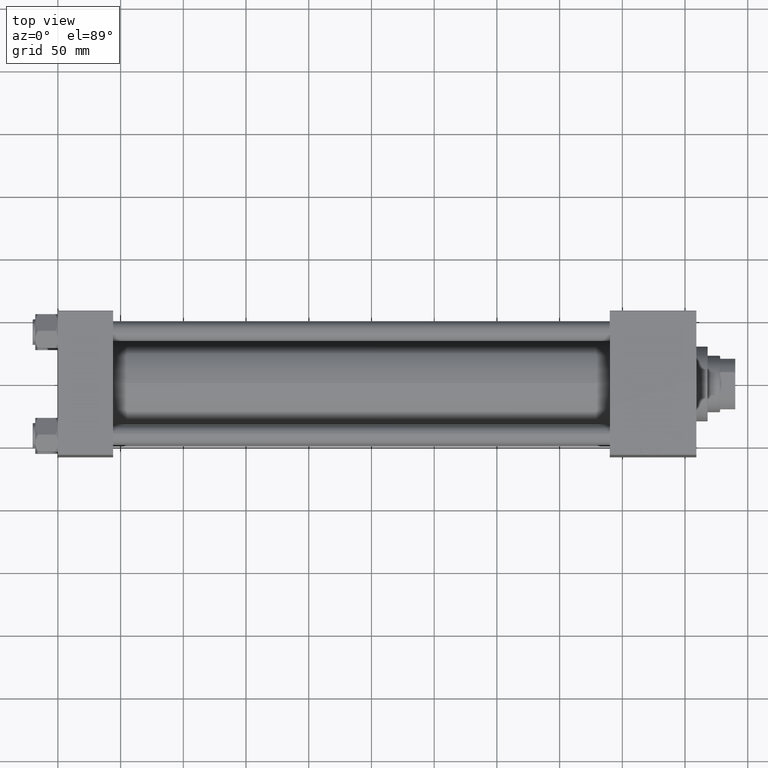
[diagram: clean part render]
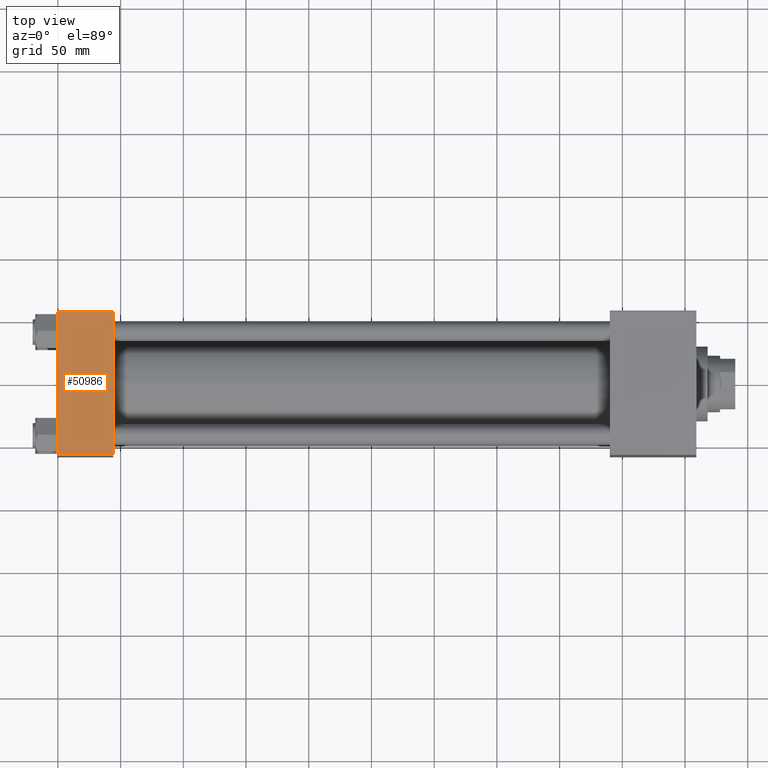
[diagram: same view with one face highlighted and labeled with its STEP entity id]
A machine part, top view. The second image highlights one B-rep face of the part: STEP entity #50986.
In plain terms, the highlighted planar face has unit normal (0, 0, -1).
Its self-contained STEP definition (entity closure, byte-faithful):
#527 = DIRECTION ( 'NONE',  ( 0.000000000000000000, 1.206764157201257045E-16, -1.000000000000000000 ) ) ;
#2572 = CARTESIAN_POINT ( 'NONE',  ( 44.00000000000000000, 57.49999999999999289, 57.50000000000000711 ) ) ;
#2900 = VECTOR ( 'NONE', #6947, 1000.000000000000000 ) ;
#4457 = DIRECTION ( 'NONE',  ( 0.000000000000000000, 1.000000000000000000, 1.206764157201257045E-16 ) ) ;
#5483 = VECTOR ( 'NONE', #32689, 1000.000000000000000 ) ;
#6762 = CARTESIAN_POINT ( 'NONE',  ( 44.00000000000000000, 57.00000000000000711, 57.50000000000000711 ) ) ;
#6947 = DIRECTION ( 'NONE',  ( 0.000000000000000000, -1.000000000000000000, -1.206764157201257045E-16 ) ) ;
#8408 = CARTESIAN_POINT ( 'NONE',  ( 44.00000000000000000, 57.49999999999999289, 57.50000000000000711 ) ) ;
#8502 = LINE ( 'NONE', #8770, #5483 ) ;
#8770 = CARTESIAN_POINT ( 'NONE',  ( 0.000000000000000000, 57.00000000000000711, 57.50000000000000711 ) ) ;
#9239 = LINE ( 'NONE', #2572, #50044 ) ;
#11508 = EDGE_CURVE ( 'NONE', #19704, #16180, #35085, .T. ) ;
#12362 = PLANE ( 'NONE',  #25384 ) ;
#12518 = ORIENTED_EDGE ( 'NONE', *, *, #13689, .T. ) ;
#12540 = CARTESIAN_POINT ( 'NONE',  ( 0.000000000000000000, 57.00000000000000711, 57.50000000000000711 ) ) ;
#13689 = EDGE_CURVE ( 'NONE', #44432, #19704, #8502, .T. ) ;
#15607 = EDGE_CURVE ( 'NONE', #44432, #42137, #9239, .T. ) ;
#16180 = VERTEX_POINT ( 'NONE', #20818 ) ;
#19704 = VERTEX_POINT ( 'NONE', #12540 ) ;
#20818 = CARTESIAN_POINT ( 'NONE',  ( 0.000000000000000000, -57.00000000000003553, 57.49999999999999289 ) ) ;
#23814 = CARTESIAN_POINT ( 'NONE',  ( 44.00000000000000000, -57.00000000000003553, 57.49999999999999289 ) ) ;
#25384 = AXIS2_PLACEMENT_3D ( 'NONE', #8408, #527, #4457 ) ;
#30711 = DIRECTION ( 'NONE',  ( 0.000000000000000000, -1.000000000000000000, -1.206764157201257045E-16 ) ) ;
#31424 = CARTESIAN_POINT ( 'NONE',  ( 44.00000000000000000, -57.00000000000003553, 57.49999999999999289 ) ) ;
#31683 = ORIENTED_EDGE ( 'NONE', *, *, #11508, .T. ) ;
#32689 = DIRECTION ( 'NONE',  ( -1.000000000000000000, 0.000000000000000000, 0.000000000000000000 ) ) ;
#34314 = VECTOR ( 'NONE', #51127, 1000.000000000000000 ) ;
#35085 = LINE ( 'NONE', #42963, #2900 ) ;
#37813 = EDGE_CURVE ( 'NONE', #16180, #42137, #38536, .T. ) ;
#38536 = LINE ( 'NONE', #31424, #34314 ) ;
#42137 = VERTEX_POINT ( 'NONE', #23814 ) ;
#42604 = ORIENTED_EDGE ( 'NONE', *, *, #15607, .F. ) ;
#42963 = CARTESIAN_POINT ( 'NONE',  ( 0.000000000000000000, 57.49999999999999289, 57.50000000000000711 ) ) ;
#44432 = VERTEX_POINT ( 'NONE', #6762 ) ;
#47110 = EDGE_LOOP ( 'NONE', ( #31683, #51740, #42604, #12518 ) ) ;
#48344 = FACE_OUTER_BOUND ( 'NONE', #47110, .T. ) ;
#50044 = VECTOR ( 'NONE', #30711, 1000.000000000000000 ) ;
#50986 = ADVANCED_FACE ( 'NONE', ( #48344 ), #12362, .F. ) ;
#51127 = DIRECTION ( 'NONE',  ( 1.000000000000000000, 0.000000000000000000, 0.000000000000000000 ) ) ;
#51740 = ORIENTED_EDGE ( 'NONE', *, *, #37813, .T. ) ;